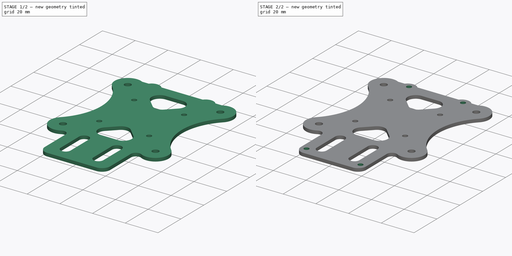
[diagram: build sequence overview — one tinted view per stage of 2, left to right]
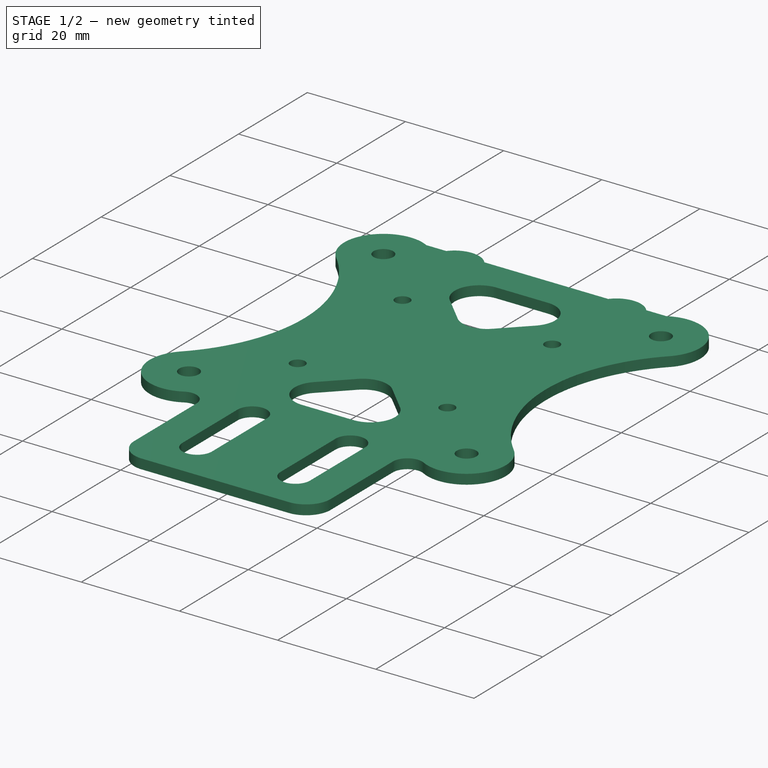
[diagram: stage 1 of 2 — iso view after this stage's code; geometry added in this stage tinted green]
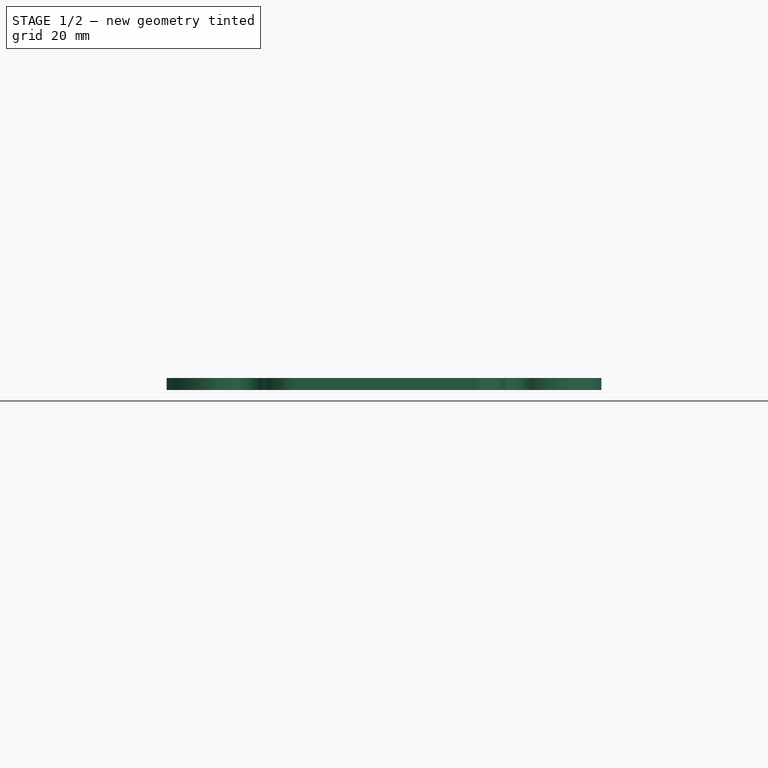
[diagram: stage 1 of 2 — front view after this stage's code; geometry added in this stage tinted green]
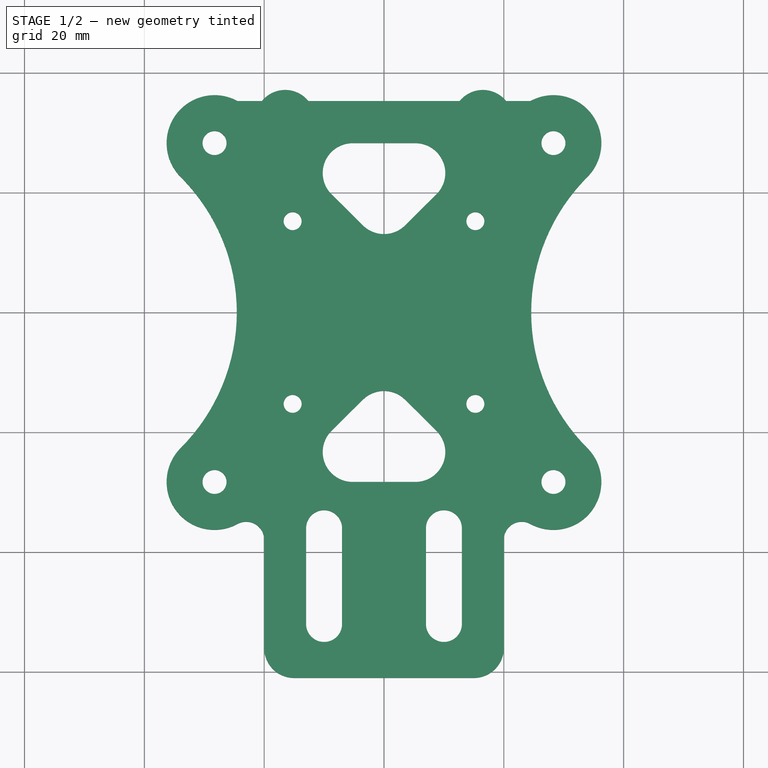
[diagram: stage 1 of 2 — top view after this stage's code; geometry added in this stage tinted green]
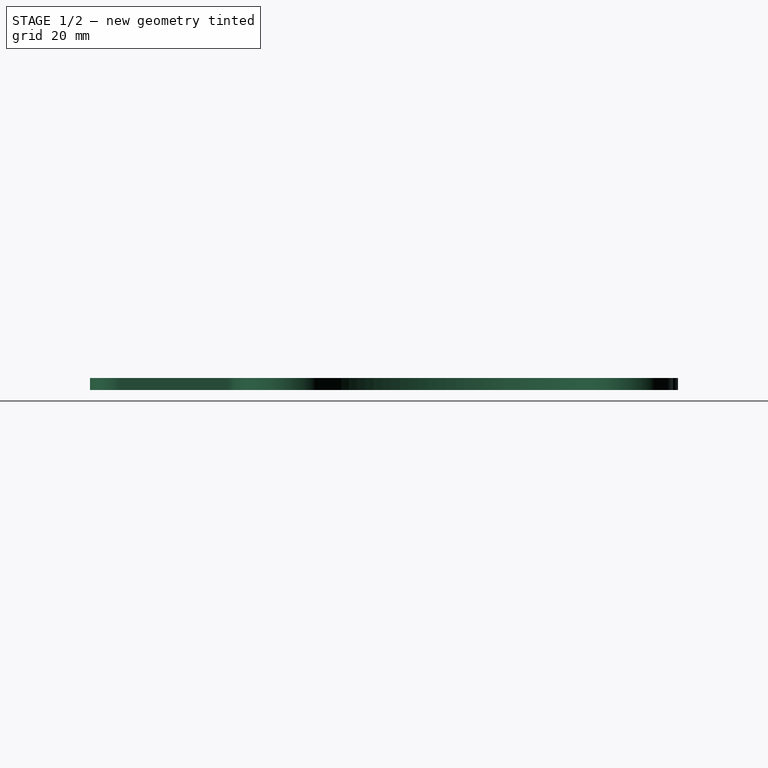
[diagram: stage 1 of 2 — right view after this stage's code; geometry added in this stage tinted green]
FCSTD DOCUMENT  (FreeCAD 0.18RUnknown)
Label: center
License: All rights reserved
LicenseURL: http://en.wikipedia.org/wiki/All_rights_reserved
objects: Sketcher::SketchObject×2, PartDesign::Pad×1, PartDesign::Pocket×1, PartDesign::Body×1
note: 7 computed .brp shape members not serialized (recipe doc carries the construction recipe); baked Part::Feature solids carry a one-line shape summary decoded from their .brp

FEATURE [Sketcher::SketchObject] Sketch
  MapMode = 5
  Support = -> [XY_Plane]
  expr: Constraints[98] = anomaly#Spreadsheet.armHoleCenterOffset
  expr: Constraints[4] = anomaly#Spreadsheet.electroMounting
  sketch-geometry (60):
    g0: LineSegment [constr] StartX=-15.25 StartY=15.25 StartZ=0 EndX=15.25 EndY=15.25 EndZ=0
    g1: LineSegment [constr] StartX=15.25 StartY=-15.25 StartZ=0 EndX=-15.25 EndY=-15.25 EndZ=0
    g2: LineSegment [constr] StartX=-15.25 StartY=-15.25 StartZ=0 EndX=-15.25 EndY=15.25 EndZ=0
    g3: Circle CenterX=28.2843 CenterY=28.2843 CenterZ=0 NormalX=0 NormalY=0 NormalZ=1 AngleXU=0 Radius=2
    g4: Circle CenterX=28.2843 CenterY=-28.2843 CenterZ=0 NormalX=0 NormalY=0 NormalZ=1 AngleXU=0 Radius=2
    g5: Circle CenterX=-28.2843 CenterY=-28.2843 CenterZ=0 NormalX=0 NormalY=0 NormalZ=1 AngleXU=0 Radius=2
    g6: Circle CenterX=-28.2843 CenterY=28.2843 CenterZ=0 NormalX=0 NormalY=0 NormalZ=1 AngleXU=0 Radius=2
    g7: LineSegment StartX=-20 StartY=-37.9319 StartZ=0 EndX=-20 EndY=-56 EndZ=0
    g8: LineSegment StartX=20 StartY=-37.9319 StartZ=0 EndX=20 EndY=-56 EndZ=0
    g9: ArcOfCircle CenterX=-23 CenterY=-37.9319 CenterZ=0 NormalX=0 NormalY=0 NormalZ=1 AngleXU=0 Radius=3 StartAngle=0 EndAngle=2.07189
    g10: ArcOfCircle CenterX=23 CenterY=-37.9319 CenterZ=0 NormalX=0 NormalY=0 NormalZ=1 AngleXU=0 Radius=3 StartAngle=1.0697 EndAngle=3.14159
    g11: LineSegment StartX=-15 StartY=-61 StartZ=0 EndX=15 EndY=-61 EndZ=0
    g12: ArcOfCircle CenterX=-28.2843 CenterY=28.2843 CenterZ=0 NormalX=0 NormalY=0 NormalZ=1 AngleXU=0 Radius=8 StartAngle=1.0697 EndAngle=3.92699
    g13: ArcOfCircle CenterX=-28.2843 CenterY=-28.2843 CenterZ=0 NormalX=0 NormalY=0 NormalZ=1 AngleXU=0 Radius=8 StartAngle=2.35619 EndAngle=5.21349
    g14: ArcOfCircle CenterX=28.2843 CenterY=-28.2843 CenterZ=0 NormalX=0 NormalY=0 NormalZ=1 AngleXU=0 Radius=8 StartAngle=4.21129 EndAngle=7.06858
    g15: ArcOfCircle CenterX=28.2843 CenterY=28.2843 CenterZ=0 NormalX=0 NormalY=0 NormalZ=1 AngleXU=0 Radius=8 StartAngle=5.49779 EndAngle=8.35508
    g16: GeomPoint X=24.4412 Y=35.3007 Z=0
    g17: LineSegment [constr] StartX=15.25 StartY=15.25 StartZ=0 EndX=15.25 EndY=-15.25 EndZ=0
    g18: LineSegment [constr] StartX=-28.2843 StartY=28.2843 StartZ=0 EndX=28.2843 EndY=28.2843 EndZ=0
    g19: LineSegment [constr] StartX=28.2843 StartY=28.2843 StartZ=0 EndX=28.2843 EndY=-28.2843 EndZ=0
    g20: LineSegment [constr] StartX=28.2843 StartY=-28.2843 StartZ=0 EndX=-28.2843 EndY=-28.2843 EndZ=0
    g21: LineSegment [constr] StartX=-28.2843 StartY=-28.2843 StartZ=0 EndX=-28.2843 EndY=28.2843 EndZ=0
    g22: ArcOfCircle CenterX=56.5685 CenterY=0 CenterZ=0 NormalX=0 NormalY=0 NormalZ=1 AngleXU=0 Radius=32 StartAngle=2.35619 EndAngle=3.92699
    g23: ArcOfCircle CenterX=-56.5685 CenterY=0 CenterZ=0 NormalX=0 NormalY=0 NormalZ=1 AngleXU=0 Radius=32 StartAngle=5.49779 EndAngle=7.06858
    g24: ArcOfCircle CenterX=-10 CenterY=-36 CenterZ=0 NormalX=0 NormalY=0 NormalZ=1 AngleXU=0 Radius=3 StartAngle=0 EndAngle=3.14159
    g25: ArcOfCircle CenterX=-10 CenterY=-52 CenterZ=0 NormalX=0 NormalY=0 NormalZ=1 AngleXU=0 Radius=3 StartAngle=3.14159 EndAngle=6.28319
    g26: LineSegment StartX=-13 StartY=-36 StartZ=0 EndX=-13 EndY=-52 EndZ=0
    g27: LineSegment StartX=-7 StartY=-36 StartZ=0 EndX=-7 EndY=-52 EndZ=0
    g28: ArcOfCircle CenterX=10 CenterY=-36 CenterZ=0 NormalX=0 NormalY=0 NormalZ=1 AngleXU=0 Radius=3 StartAngle=-3.0003e-12 EndAngle=3.14159
    g29: ArcOfCircle CenterX=10 CenterY=-52 CenterZ=0 NormalX=0 NormalY=0 NormalZ=1 AngleXU=0 Radius=3 StartAngle=3.14159 EndAngle=6.28319
    g30: LineSegment StartX=7 StartY=-36 StartZ=0 EndX=7 EndY=-52 EndZ=0
    g31: LineSegment StartX=13 StartY=-36 StartZ=0 EndX=13 EndY=-52 EndZ=0
    g32: LineSegment [constr] StartX=33.9411 StartY=22.6274 StartZ=0 EndX=-24.4412 EndY=-35.3007 EndZ=0
    g33: LineSegment [constr] StartX=-33.9411 StartY=-22.6274 StartZ=0 EndX=24.4412 EndY=35.3007 EndZ=0
    g34: LineSegment [constr] StartX=-24.4412 StartY=35.3007 StartZ=0 EndX=33.9411 EndY=-22.6274 EndZ=0
    g35: LineSegment [constr] StartX=-33.9411 StartY=22.6274 StartZ=0 EndX=24.4412 EndY=-35.3007 EndZ=0
    g36: LineSegment StartX=-8.75337 StartY=19.735 StartZ=0 EndX=-3.5217 EndY=14.544 EndZ=0
    g37: LineSegment StartX=3.5217 StartY=14.544 StartZ=0 EndX=8.75337 EndY=19.735 EndZ=0
    g38: LineSegment StartX=5.23167 StartY=28.2843 StartZ=0 EndX=-5.23167 EndY=28.2843 EndZ=0
    g39: LineSegment StartX=3.5217 StartY=-14.544 StartZ=0 EndX=8.75337 EndY=-19.735 EndZ=0
    g40: LineSegment StartX=5.23167 StartY=-28.2843 StartZ=0 EndX=-5.23167 EndY=-28.2843 EndZ=0
    g41: LineSegment StartX=-8.75337 StartY=-19.735 StartZ=0 EndX=-3.5217 EndY=-14.544 EndZ=0
    g42: ArcOfCircle CenterX=-5.23167 CenterY=23.2843 CenterZ=0 NormalX=0 NormalY=0 NormalZ=1 AngleXU=0 Radius=5 StartAngle=1.5708 EndAngle=3.9309
    g43: ArcOfCircle CenterX=5.23167 CenterY=23.2843 CenterZ=0 NormalX=0 NormalY=0 NormalZ=1 AngleXU=0 Radius=5 StartAngle=5.49388 EndAngle=7.85398
    g44: ArcOfCircle CenterX=0 CenterY=18.0933 CenterZ=0 NormalX=0 NormalY=0 NormalZ=1 AngleXU=0 Radius=5 StartAngle=3.9309 EndAngle=5.49388
    g45: ArcOfCircle CenterX=0 CenterY=-18.0933 CenterZ=0 NormalX=0 NormalY=0 NormalZ=1 AngleXU=0 Radius=5 StartAngle=0.789303 EndAngle=2.35229
    g46: ArcOfCircle CenterX=5.23167 CenterY=-23.2843 CenterZ=0 NormalX=0 NormalY=0 NormalZ=1 AngleXU=0 Radius=5 StartAngle=4.71239 EndAngle=7.07249
    g47: ArcOfCircle CenterX=-5.23167 CenterY=-23.2843 CenterZ=0 NormalX=0 NormalY=0 NormalZ=1 AngleXU=0 Radius=5 StartAngle=2.35229 EndAngle=4.71239
    g48: Circle CenterX=15.25 CenterY=15.25 CenterZ=0 NormalX=0 NormalY=0 NormalZ=1 AngleXU=0 Radius=1.5
    g49: Circle CenterX=-15.25 CenterY=15.25 CenterZ=0 NormalX=0 NormalY=0 NormalZ=1 AngleXU=0 Radius=1.5
    g50: Circle CenterX=-15.25 CenterY=-15.25 CenterZ=0 NormalX=0 NormalY=0 NormalZ=1 AngleXU=0 Radius=1.5
    g51: Circle CenterX=15.25 CenterY=-15.25 CenterZ=0 NormalX=0 NormalY=0 NormalZ=1 AngleXU=0 Radius=1.5
    g52: LineSegment StartX=-24.4412 StartY=35.3007 StartZ=0 EndX=-20.385 EndY=35.3007 EndZ=0
    g53: LineSegment StartX=24.4412 StartY=35.3007 StartZ=0 EndX=20.385 EndY=35.3007 EndZ=0
    g54: LineSegment StartX=-12.615 StartY=35.3007 StartZ=0 EndX=12.615 EndY=35.3007 EndZ=0
    g55: ArcOfCircle CenterX=-16.5 CenterY=32.1532 CenterZ=0 NormalX=0 NormalY=0 NormalZ=1 AngleXU=0 Radius=5 StartAngle=0.68091 EndAngle=2.46068
    g56: ArcOfCircle CenterX=16.5 CenterY=32.1532 CenterZ=0 NormalX=0 NormalY=0 NormalZ=1 AngleXU=0 Radius=5 StartAngle=0.68091 EndAngle=2.46068
    g57: LineSegment [constr] StartX=-24.4412 StartY=35.3007 StartZ=0 EndX=24.4412 EndY=35.3007 EndZ=0
    g58: ArcOfCircle CenterX=-15 CenterY=-56 CenterZ=0 NormalX=0 NormalY=0 NormalZ=1 AngleXU=0 Radius=5 StartAngle=3.14159 EndAngle=4.71239
    g59: ArcOfCircle CenterX=15 CenterY=-56 CenterZ=0 NormalX=0 NormalY=0 NormalZ=1 AngleXU=0 Radius=5 StartAngle=4.71239 EndAngle=6.28319
  constraints (147):
    c: Coincident(g1,g2)
    c: Horizontal(g0)
    c: Horizontal(g1)
    c: Vertical(g2)
    c: DistanceY(g1,g0) = 30.5
    c: Vertical(g7)
    c: Vertical(g8)
    c: Equal(g12,g13)
    c: Equal(g13,g14)
    c: Equal(g14,g15)
    c: Coincident(g17,g0)
    c: Coincident(g17,g1)
    c: Vertical(g17)
    c: Coincident(g0,g2)
    c: Coincident(g18,g19)
    c: Coincident(g19,g20)
    c: Coincident(g20,g21)
    c: Coincident(g21,g18)
    c: Horizontal(g18)
    c: Horizontal(g20)
    c: Vertical(g19)
    c: Vertical(g21)
    c: Coincident(g18,g3)
    c: Coincident(g15,g3)
    c: Coincident(g19,g4)
    c: Coincident(g14,g4)
    c: Coincident(g20,g5)
    c: Coincident(g5,g13)
    c: Coincident(g18,g6)
    c: Coincident(g6,g12)
    c: Symmetric(g0,g1,g-1)
    c: Symmetric(g6,g4,g-1)
    c: Equal(g18,g21)
    c: Equal(g2,g0)
    c: Coincident(g12,g34) = 1.5708
    c: Coincident(g15,g16) = 1.5708
    c: Equal(g9,g10)
    c: Radius(g15) = 8
    c: Tangent(g10,g8) = -1.5708
    c: Tangent(g14,g10) = 1.5708
    c: Tangent(g13,g9) = 1.5708
    c: Tangent(g9,g7) = 1.5708
    c: Tangent(g23,g12) = 1.5708
    c: Tangent(g23,g13) = 1.5708
    c: Tangent(g22,g15) = 1.5708
    c: Tangent(g22,g14) = 1.5708
    c: Equal(g22,g23)
    c: Tangent(g24,g27) = 1.5708
    c: Tangent(g24,g26) = -1.5708
    c: Tangent(g26,g25) = -1.5708
    c: Tangent(g27,g25) = 1.5708
    c: Vertical(g26)
    c: Equal(g24,g25)
    c: Tangent(g28,g31) = 1.5708
    c: Tangent(g28,g30) = -1.5708
    c: Tangent(g30,g29) = -1.5708
    c: Tangent(g31,g29) = 1.5708
    c: Vertical(g30)
    c: Equal(g28,g29)
    c: Equal(g30,g27)
    c: Equal(g24,g28)
    c: Symmetric(g24,g28,g-2)
    c: Coincident(g32,g15)
    c: Coincident(g32,g9)
    c: Coincident(g34,g14)
    c: Coincident(g35,g10)
    c: Horizontal(g38)
    c: Coincident(g33,g13)
    c: Coincident(g35,g12)
    c: Tangent(g38,g42) = -1.5708
    c: Tangent(g36,g42) = -1.5708
    c: Tangent(g38,g43) = -1.5708
    c: Tangent(g37,g43) = -1.5708
    c: Tangent(g36,g44) = -1.5708
    c: Tangent(g37,g44) = -1.5708
    c: Equal(g43,g42)
    c: Equal(g42,g44)
    c: PointOnObject(g37,g33)
    c: PointOnObject(g37,g33)
    c: PointOnObject(g36,g34)
    c: PointOnObject(g36,g34)
    c: PointOnObject(g38,g18)
    c: Radius(g43) = 5
    c: Tangent(g41,g45) = 1.5708
    c: Tangent(g39,g45) = 1.5708
    c: Tangent(g39,g46) = 1.5708
    c: Tangent(g40,g46) = 1.5708
    c: Tangent(g41,g47) = 1.5708
    c: Tangent(g40,g47) = 1.5708
    c: PointOnObject(g41,g32)
    c: PointOnObject(g40,g20)
    c: PointOnObject(g40,g20)
    c: PointOnObject(g39,g35)
    c: PointOnObject(g39,g35)
    c: PointOnObject(g41,g32)
    c: Equal(g45,g46)
    c: Equal(g46,g47)
    c: Equal(g46,g44)
    c: Distance(g-1,g3) = 40
    c: Equal(g3,g6)
    c: Equal(g6,g5)
    c: Equal(g5,g4)
    c: Radius(g3) = 2
    c: DistanceX(g25,g29) = 20
    c: DistanceY(g29,g28) = 16
    c: DistanceY(g28,g-1) = 36
    c: Radius(g23) = 32
    c: Horizontal(g11)
    c: Radius(g29) = 3
    c: Coincident(g48,g0)
    c: Radius(g48) = 1.5
    c: Coincident(g49,g0)
    c: Coincident(g50,g1)
    c: Coincident(g51,g1)
    c: Equal(g51,g50)
    c: Equal(g50,g49)
    c: Equal(g49,g48)
    c: Radius(g9) = 3
    c: Coincident(g33,g15)
    c: Equal(g7,g8)
    c: Coincident(g53,g15)
    c: Coincident(g52,g12)
    c: Equal(g40,g38)
    c: Equal(g36,g41)
    c: Equal(g52,g53)
    c: DistanceX(g55,g56) = 33
    c: Coincident(g57,g15)
    c: PointOnObject(g53,g57)
    c: PointOnObject(g54,g57)
    c: PointOnObject(g54,g57)
    c: PointOnObject(g52,g57)
    c: Coincident(g12,g57)
    c: Radius(g56) = 5
    c: Symmetric(g55,g56,g-2)
    c: Coincident(g55,g52)
    c: Coincident(g55,g54)
    c: Coincident(g54,g56)
    c: Coincident(g56,g53)
    c: DistanceX(g54,g54) = 25.23
    c: Tangent(g7,g58) = -1.5708
    c: Tangent(g11,g58) = -1.5708
    c: Tangent(g11,g59) = -1.5708
    c: Tangent(g8,g59) = 1.5708
    c: DistanceX(g7,g8) = 40
    c: Equal(g58,g59)
    c: Radius(g59) = 5
    c: DistanceY(g11,g-1) = 61
FEATURE [PartDesign::Pad] Pad
  Length = 2
  Length2 = 100
  Profile = -> Sketch
  Type = 0
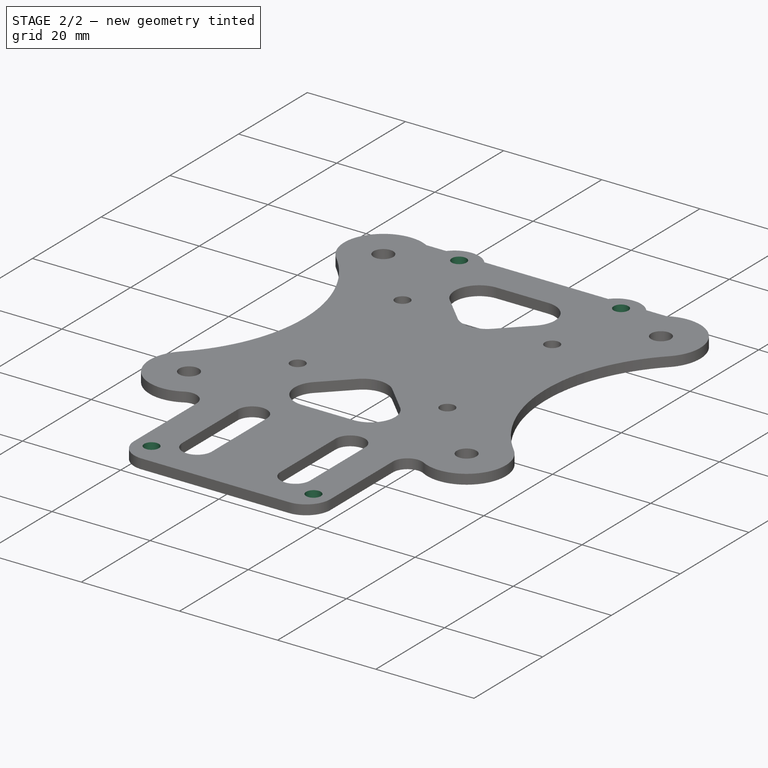
[diagram: stage 2 of 2 — iso view after this stage's code; geometry added in this stage tinted green]
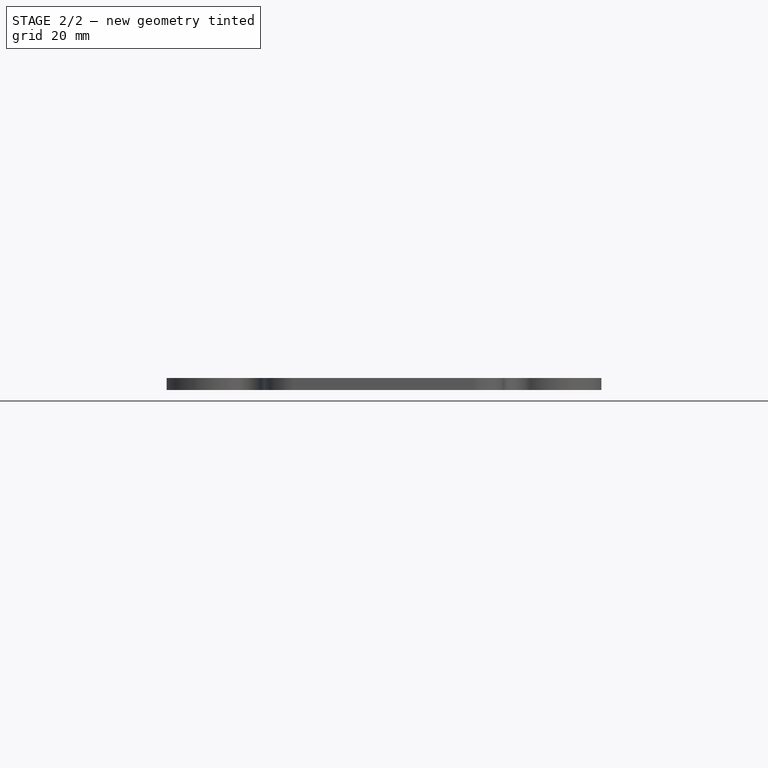
[diagram: stage 2 of 2 — front view after this stage's code; geometry added in this stage tinted green]
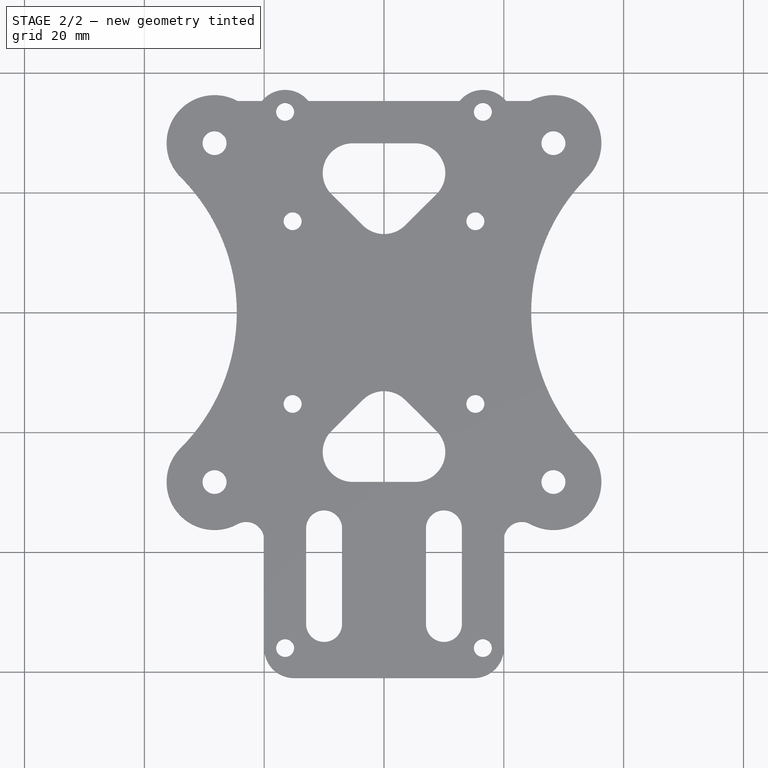
[diagram: stage 2 of 2 — top view after this stage's code; geometry added in this stage tinted green]
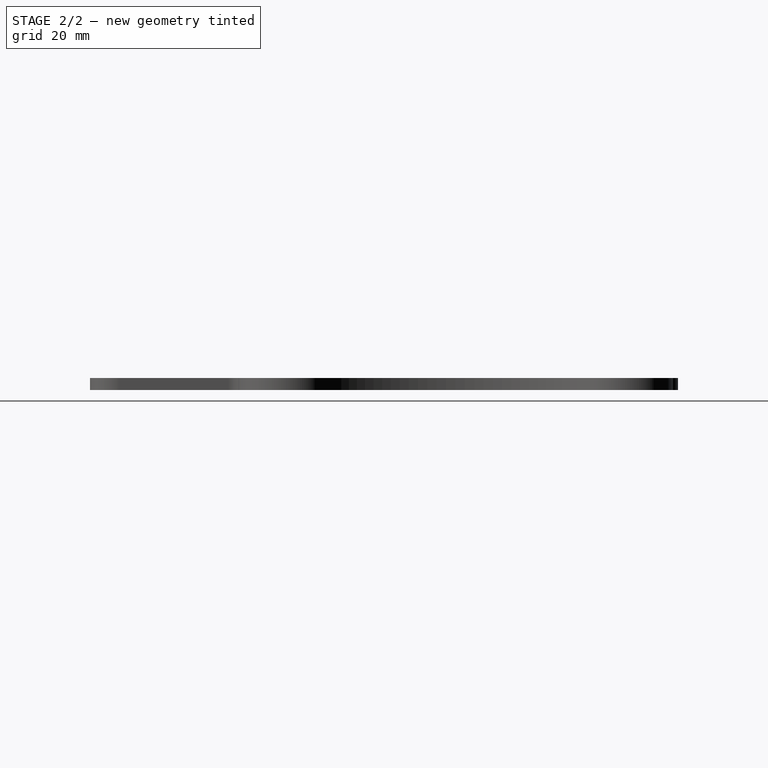
[diagram: stage 2 of 2 — right view after this stage's code; geometry added in this stage tinted green]
FEATURE [Sketcher::SketchObject] Sketch001
  MapMode = 5
  Placement = pos=(0,0,2) rot=(0,0,1;0rad)
  expr: Constraints[19] = anomaly#Spreadsheet.aluHoleDist
  sketch-geometry (8):
    g0: Circle CenterX=-16.5 CenterY=33.5 CenterZ=0 NormalX=0 NormalY=0 NormalZ=1 AngleXU=0 Radius=1.5
    g1: Circle CenterX=16.5 CenterY=33.5 CenterZ=0 NormalX=0 NormalY=0 NormalZ=1 AngleXU=0 Radius=1.5
    g2: LineSegment [constr] StartX=-16.5 StartY=33.5 StartZ=0 EndX=16.5 EndY=33.5 EndZ=0
    g3: LineSegment [constr] StartX=16.5 StartY=33.5 StartZ=0 EndX=16.5 EndY=-56 EndZ=0
    g4: LineSegment [constr] StartX=16.5 StartY=-56 StartZ=0 EndX=-16.5 EndY=-56 EndZ=0
    g5: LineSegment [constr] StartX=-16.5 StartY=-56 StartZ=0 EndX=-16.5 EndY=33.5 EndZ=0
    g6: Circle CenterX=16.5 CenterY=-56 CenterZ=0 NormalX=0 NormalY=0 NormalZ=1 AngleXU=0 Radius=1.5
    g7: Circle CenterX=-16.5 CenterY=-56 CenterZ=0 NormalX=0 NormalY=0 NormalZ=1 AngleXU=0 Radius=1.5
  constraints (20):
    c: Radius(g0) = 1.5
    c: Equal(g0,g1)
    c: Coincident(g2,g3)
    c: Coincident(g3,g4)
    c: Coincident(g4,g5)
    c: Coincident(g5,g2)
    c: Horizontal(g2)
    c: Horizontal(g4)
    c: Vertical(g3)
    c: Vertical(g5)
    c: Coincident(g2,g0)
    c: Coincident(g2,g1)
    c: Symmetric(g4,g3,g-2)
    c: DistanceY(g3,g-1) = 56
    c: Coincident(g6,g3)
    c: Coincident(g7,g4)
    c: Equal(g7,g6)
    c: Equal(g6,g1)
    c: DistanceY(g-1,g1) = 33.5
    c: DistanceX(g0,g1) = 33
FEATURE [PartDesign::Pocket] Pocket
  BaseFeature = -> Pad
  Length = 5
  Length2 = 100
  Profile = -> Sketch001
  Type = 1
FEATURE [PartDesign::Body] Body
  Group = -> [Sketch,Pad,Sketch001,Pocket]
  Origin = -> Origin
  Tip = -> Pocket
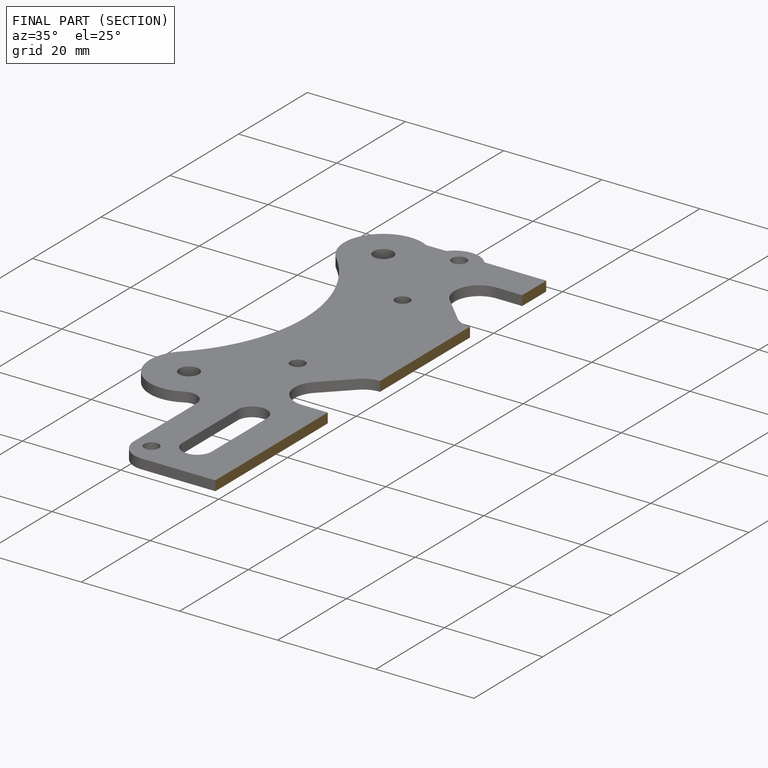
[diagram: finished part — half-section view (interior)]
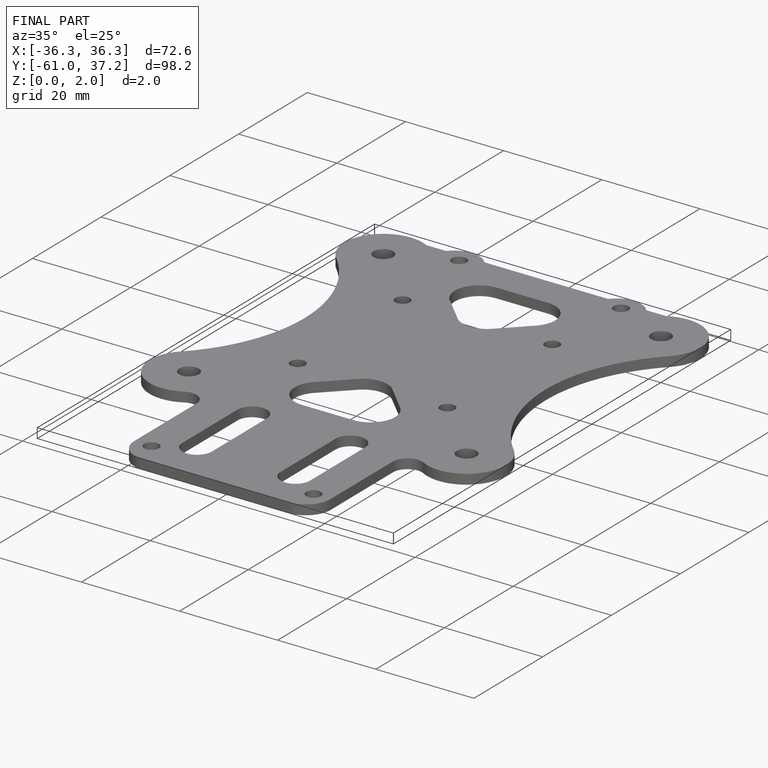
[diagram: finished part — iso view with bounding-box wireframe]
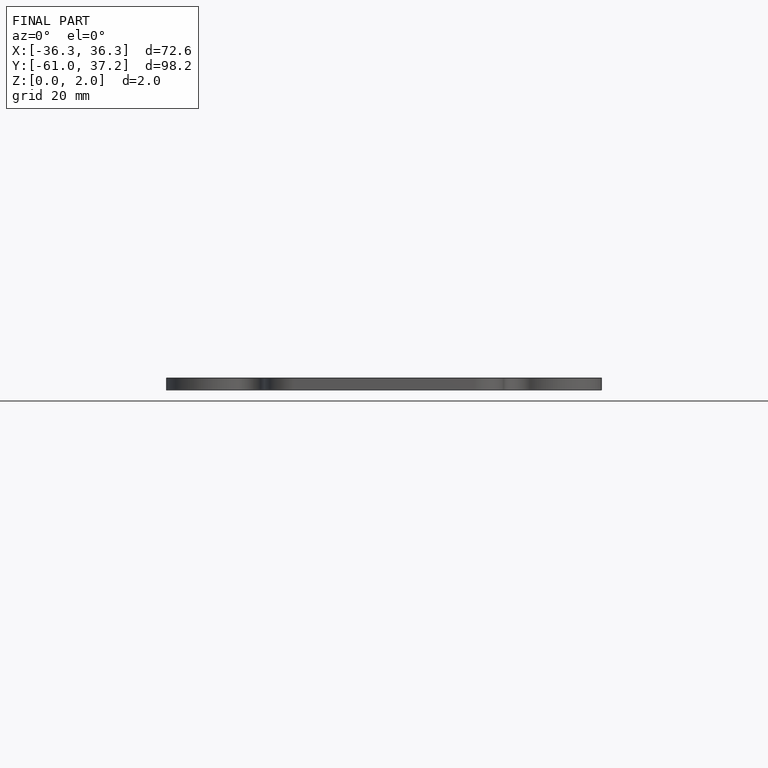
[diagram: finished part — front view with bounding-box wireframe]
